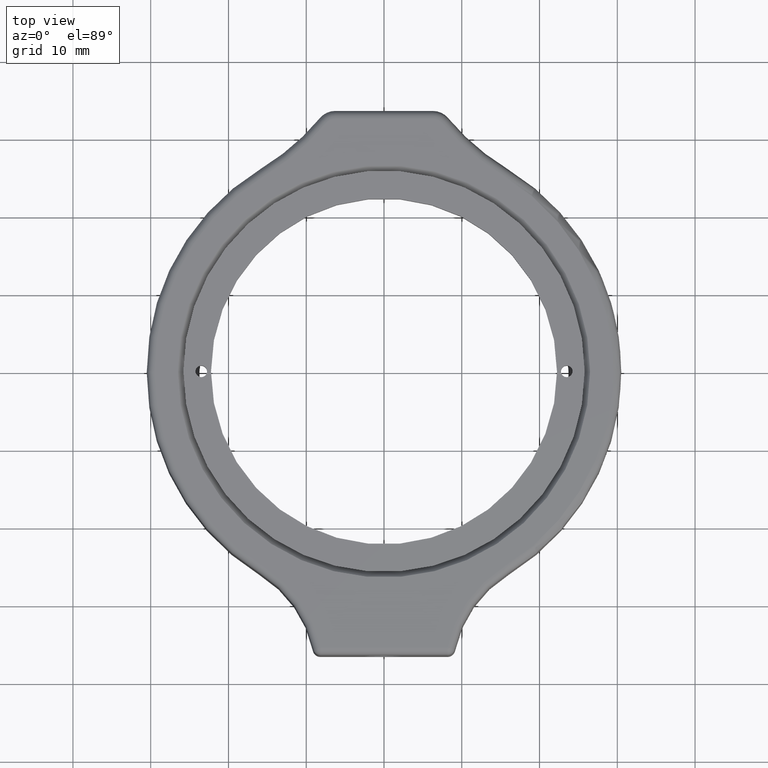
[diagram: clean part render]
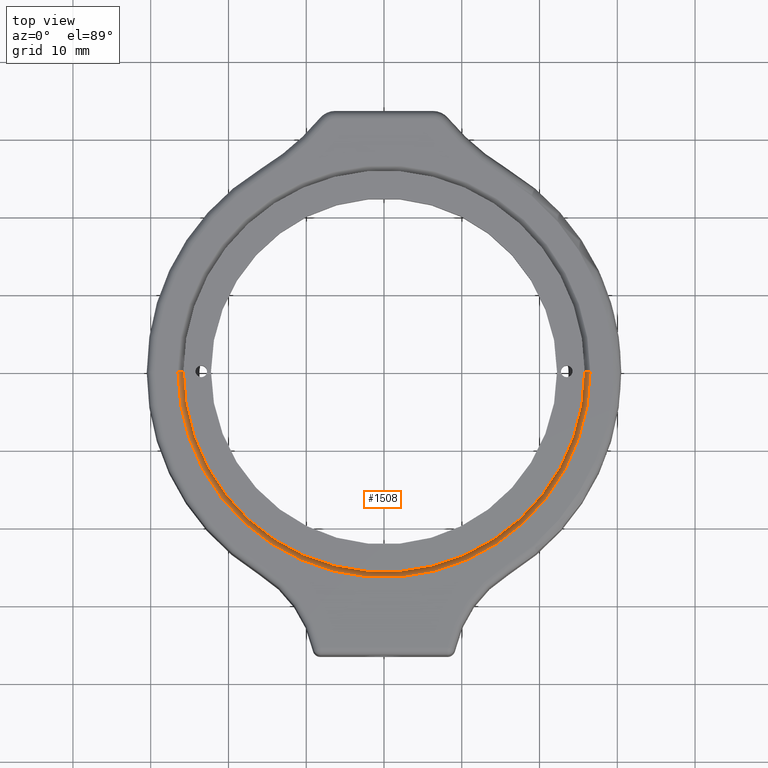
[diagram: same view with one face highlighted and labeled with its STEP entity id]
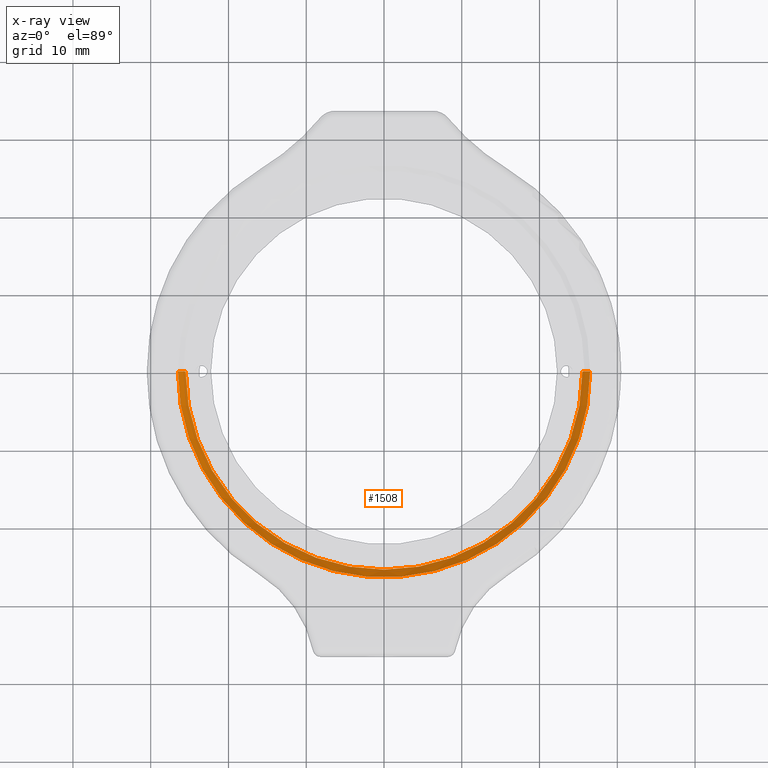
[diagram: x-ray of the same camera — body ghosted, the highlighted face saturated]
A machine part, top view. The second image highlights one B-rep face of the part: STEP entity #1508.
The next image is the same camera in x-ray: the body ghosted, the highlighted face saturated — about 0% of this face is hidden behind the body in this view.
In plain terms, the highlighted conical surface has half-angle 45 deg.
Its self-contained STEP definition (entity closure, byte-faithful):
#195 = EDGE_CURVE ( 'NONE', #966, #941, #1214, .T. ) ;
#198 = CONICAL_SURFACE ( 'NONE', #1950, 26.49999999999998900, 0.7853981633974465000 ) ;
#222 = DIRECTION ( 'NONE',  ( 0.7071067811865462400, -3.925231146709431900E-016, 0.7071067811865489100 ) ) ;
#391 = CARTESIAN_POINT ( 'NONE',  ( -26.49999999999998900, 1.795576909402380600E-014, 0.0000000000000000000 ) ) ;
#405 = CARTESIAN_POINT ( 'NONE',  ( 26.49999999999998900, -1.471045507628332100E-014, 0.0000000000000000000 ) ) ;
#413 = DIRECTION ( 'NONE',  ( 0.0000000000000000000, 0.0000000000000000000, -1.000000000000000000 ) ) ;
#533 = CARTESIAN_POINT ( 'NONE',  ( -26.49999999999998900, 1.795576909402380600E-014, 0.0000000000000000000 ) ) ;
#540 = EDGE_CURVE ( 'NONE', #1144, #966, #1700, .T. ) ;
#623 = DIRECTION ( 'NONE',  ( -0.0000000000000000000, 0.0000000000000000000, 1.000000000000000000 ) ) ;
#667 = VECTOR ( 'NONE', #1872, 999.9999999999998900 ) ;
#683 = CARTESIAN_POINT ( 'NONE',  ( 0.0000000000000000000, 0.0000000000000000000, -0.9999999999999974500 ) ) ;
#778 = EDGE_CURVE ( 'NONE', #941, #1921, #1351, .T. ) ;
#849 = VECTOR ( 'NONE', #222, 999.9999999999998900 ) ;
#868 = EDGE_LOOP ( 'NONE', ( #1960, #1866, #1084, #1272 ) ) ;
#901 = FACE_OUTER_BOUND ( 'NONE', #868, .T. ) ;
#909 = DIRECTION ( 'NONE',  ( -1.000000000000000000, 5.551115123125783700E-016, 0.0000000000000000000 ) ) ;
#941 = VERTEX_POINT ( 'NONE', #952 ) ;
#952 = CARTESIAN_POINT ( 'NONE',  ( 26.49999999999998900, -1.471045507628332100E-014, 0.0000000000000000000 ) ) ;
#954 = CARTESIAN_POINT ( 'NONE',  ( 0.0000000000000000000, 0.0000000000000000000, 0.0000000000000000000 ) ) ;
#966 = VERTEX_POINT ( 'NONE', #2171 ) ;
#1084 = ORIENTED_EDGE ( 'NONE', *, *, #778, .F. ) ;
#1133 = DIRECTION ( 'NONE',  ( 1.000000000000000000, -5.551115123125783700E-016, 0.0000000000000000000 ) ) ;
#1144 = VERTEX_POINT ( 'NONE', #1529 ) ;
#1180 = DIRECTION ( 'NONE',  ( -1.000000000000000000, 5.551115123125783700E-016, 0.0000000000000000000 ) ) ;
#1214 = LINE ( 'NONE', #405, #849 ) ;
#1272 = ORIENTED_EDGE ( 'NONE', *, *, #195, .F. ) ;
#1340 = LINE ( 'NONE', #533, #667 ) ;
#1351 = CIRCLE ( 'NONE', #2002, 26.49999999999998900 ) ;
#1416 = CARTESIAN_POINT ( 'NONE',  ( 0.0000000000000000000, 0.0000000000000000000, 0.0000000000000000000 ) ) ;
#1508 = ADVANCED_FACE ( 'NONE', ( #901 ), #198, .F. ) ;
#1529 = CARTESIAN_POINT ( 'NONE',  ( -25.49999999999999600, 1.727819290179649500E-014, -0.9999999999999974500 ) ) ;
#1700 = CIRCLE ( 'NONE', #1802, 25.49999999999999600 ) ;
#1802 = AXIS2_PLACEMENT_3D ( 'NONE', #683, #1859, #1180 ) ;
#1859 = DIRECTION ( 'NONE',  ( -0.0000000000000000000, -0.0000000000000000000, 1.000000000000000000 ) ) ;
#1866 = ORIENTED_EDGE ( 'NONE', *, *, #2069, .T. ) ;
#1872 = DIRECTION ( 'NONE',  ( -0.7071067811865462400, 4.791187202944924400E-016, 0.7071067811865489100 ) ) ;
#1921 = VERTEX_POINT ( 'NONE', #391 ) ;
#1950 = AXIS2_PLACEMENT_3D ( 'NONE', #954, #623, #1133 ) ;
#1960 = ORIENTED_EDGE ( 'NONE', *, *, #540, .F. ) ;
#2002 = AXIS2_PLACEMENT_3D ( 'NONE', #1416, #413, #909 ) ;
#2069 = EDGE_CURVE ( 'NONE', #1144, #1921, #1340, .T. ) ;
#2171 = CARTESIAN_POINT ( 'NONE',  ( 25.49999999999999600, -1.415534356397074600E-014, -0.9999999999999974500 ) ) ;